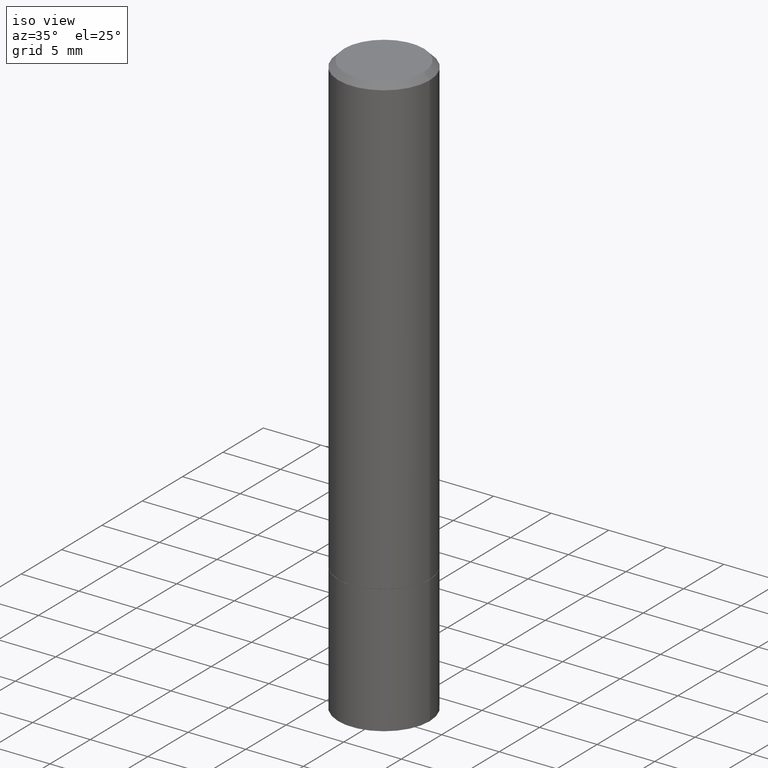
[diagram: clean part render]
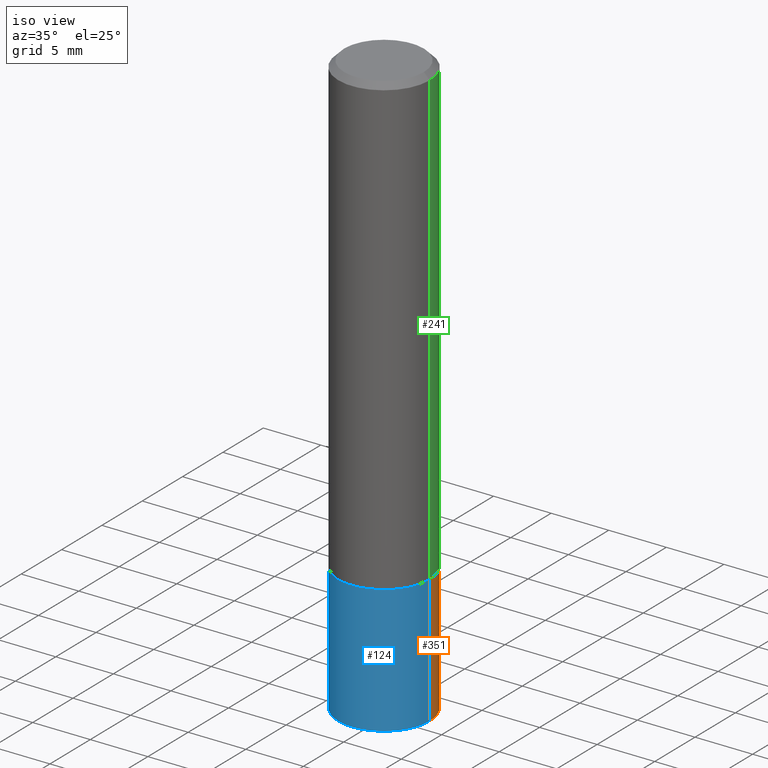
[diagram: same view with three faces highlighted in distinct colors, each labeled with its STEP entity id]
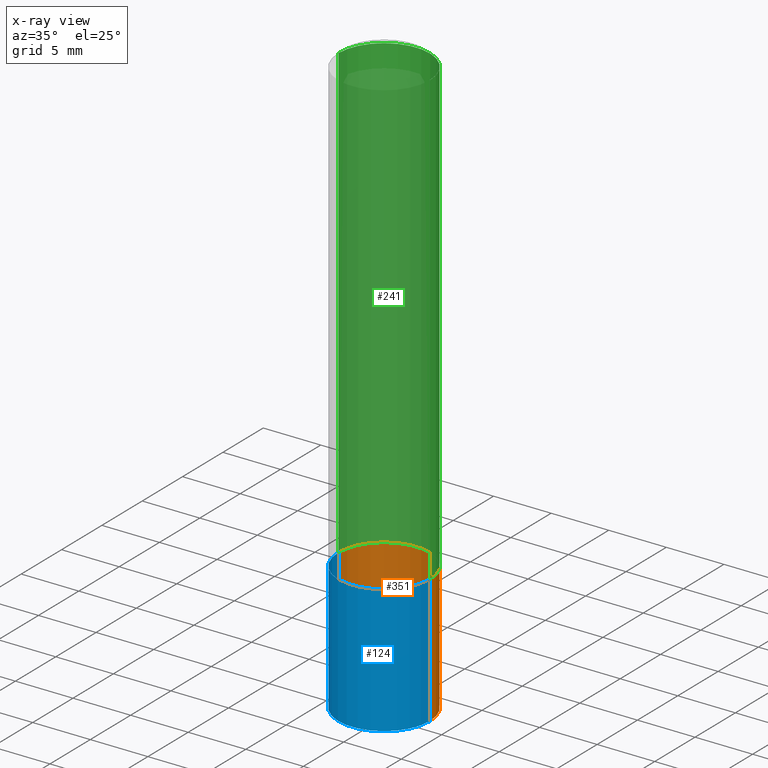
[diagram: x-ray of the same camera — body ghosted, the three highlighted faces saturated]
A machine part, iso view with three faces highlighted in distinct colors.
The next image is the same camera in x-ray (body ghosted, the three faces saturated) — at least one of them is partly hidden behind the body in this view.
Their STEP definitions:

[orange] entity #351 — the highlighted cylindrical surface (partial cylindrical patch) has radius 3.9688 mm, axis along (-0, 0, 1).
#11 = EDGE_CURVE ( 'NONE', #170, #69, #219, .T. ) ;
#18 = EDGE_LOOP ( 'NONE', ( #74, #274, #294, #36 ) ) ;
#19 = DIRECTION ( 'NONE',  ( -2.445468806185136597E-29, 3.491481338843145583E-15, 1.000000000000000000 ) ) ;
#34 = AXIS2_PLACEMENT_3D ( 'NONE', #218, #37, #248 ) ;
#35 = DIRECTION ( 'NONE',  ( -2.445468806185136877E-29, 3.491481338843145188E-15, 1.000000000000000000 ) ) ;
#36 = ORIENTED_EDGE ( 'NONE', *, *, #177, .F. ) ;
#37 = DIRECTION ( 'NONE',  ( -2.445468806185136597E-29, 3.491481338843145583E-15, 1.000000000000000000 ) ) ;
#48 = CARTESIAN_POINT ( 'NONE',  ( 3.821045009664275932E-29, -5.455439591942415589E-15, -1.562500000000000000 ) ) ;
#58 = CARTESIAN_POINT ( 'NONE',  ( 0.1562500000000000000, -1.091087918388479174E-15, 7.619026212181150377E-30 ) ) ;
#69 = VERTEX_POINT ( 'NONE', #172 ) ;
#74 = ORIENTED_EDGE ( 'NONE', *, *, #11, .T. ) ;
#82 = VECTOR ( 'NONE', #35, 39.37007874015748143 ) ;
#87 = AXIS2_PLACEMENT_3D ( 'NONE', #193, #199, #333 ) ;
#112 = EDGE_CURVE ( 'NONE', #320, #186, #356, .T. ) ;
#113 = LINE ( 'NONE', #58, #82 ) ;
#133 = DIRECTION ( 'NONE',  ( 1.000000000000000000, -6.982962677686269077E-15, 0.000000000000000000 ) ) ;
#148 = CARTESIAN_POINT ( 'NONE',  ( -0.1562500000000000000, -5.108978110189196442E-15, -1.562500000000000000 ) ) ;
#170 = VERTEX_POINT ( 'NONE', #264 ) ;
#172 = CARTESIAN_POINT ( 'NONE',  ( -0.1562500000000000000, -5.108978110189196442E-15, -2.000000000000000000 ) ) ;
#177 = EDGE_CURVE ( 'NONE', #170, #320, #113, .T. ) ;
#180 = CARTESIAN_POINT ( 'NONE',  ( -0.1562500000000000000, 1.110223024625156540E-15, -7.685836078523291160E-30 ) ) ;
#182 = LINE ( 'NONE', #180, #340 ) ;
#186 = VERTEX_POINT ( 'NONE', #148 ) ;
#193 = CARTESIAN_POINT ( 'NONE',  ( 4.890937612370273194E-29, -6.982962677686291165E-15, -2.000000000000000000 ) ) ;
#199 = DIRECTION ( 'NONE',  ( -2.445468806185136597E-29, 3.491481338843145583E-15, 1.000000000000000000 ) ) ;
#217 = FACE_OUTER_BOUND ( 'NONE', #18, .T. ) ;
#218 = CARTESIAN_POINT ( 'NONE',  ( 0.000000000000000000, 0.000000000000000000, 0.000000000000000000 ) ) ;
#219 = CIRCLE ( 'NONE', #87, 0.1562500000000000000 ) ;
#235 = AXIS2_PLACEMENT_3D ( 'NONE', #48, #19, #133 ) ;
#248 = DIRECTION ( 'NONE',  ( 1.000000000000000000, -6.982962677686266711E-15, 4.876176775795936353E-29 ) ) ;
#257 = EDGE_CURVE ( 'NONE', #69, #186, #182, .T. ) ;
#264 = CARTESIAN_POINT ( 'NONE',  ( 0.1562500000000000000, -8.074050596074770339E-15, -2.000000000000000000 ) ) ;
#271 = CYLINDRICAL_SURFACE ( 'NONE', #34, 0.1562500000000000000 ) ;
#274 = ORIENTED_EDGE ( 'NONE', *, *, #257, .T. ) ;
#294 = ORIENTED_EDGE ( 'NONE', *, *, #112, .F. ) ;
#320 = VERTEX_POINT ( 'NONE', #352 ) ;
#333 = DIRECTION ( 'NONE',  ( 1.000000000000000000, -6.982962677686269077E-15, 0.000000000000000000 ) ) ;
#340 = VECTOR ( 'NONE', #341, 39.37007874015748143 ) ;
#341 = DIRECTION ( 'NONE',  ( -2.445468806185136877E-29, 3.491481338843145188E-15, 1.000000000000000000 ) ) ;
#351 = ADVANCED_FACE ( 'NONE', ( #217 ), #271, .T. ) ;
#352 = CARTESIAN_POINT ( 'NONE',  ( 0.1562500000000000000, -6.546527510330894763E-15, -1.562500000000000000 ) ) ;
#356 = CIRCLE ( 'NONE', #235, 0.1562500000000000000 ) ;

[blue] entity #124 — the highlighted cylindrical surface (partial cylindrical patch) has radius 3.9688 mm, axis along (-0, 0, 1).
#17 = ORIENTED_EDGE ( 'NONE', *, *, #86, .F. ) ;
#21 = CYLINDRICAL_SURFACE ( 'NONE', #285, 0.1562500000000000000 ) ;
#22 = DIRECTION ( 'NONE',  ( 1.000000000000000000, -6.982962677686269077E-15, 0.000000000000000000 ) ) ;
#32 = AXIS2_PLACEMENT_3D ( 'NONE', #277, #225, #22 ) ;
#35 = DIRECTION ( 'NONE',  ( -2.445468806185136877E-29, 3.491481338843145188E-15, 1.000000000000000000 ) ) ;
#44 = EDGE_LOOP ( 'NONE', ( #111, #99, #308, #17 ) ) ;
#58 = CARTESIAN_POINT ( 'NONE',  ( 0.1562500000000000000, -1.091087918388479174E-15, 7.619026212181150377E-30 ) ) ;
#69 = VERTEX_POINT ( 'NONE', #172 ) ;
#77 = CARTESIAN_POINT ( 'NONE',  ( 3.821045009664275932E-29, -5.455439591942415589E-15, -1.562500000000000000 ) ) ;
#82 = VECTOR ( 'NONE', #35, 39.37007874015748143 ) ;
#86 = EDGE_CURVE ( 'NONE', #186, #320, #206, .T. ) ;
#98 = EDGE_CURVE ( 'NONE', #69, #170, #263, .T. ) ;
#99 = ORIENTED_EDGE ( 'NONE', *, *, #98, .T. ) ;
#103 = DIRECTION ( 'NONE',  ( 1.000000000000000000, -6.982962677686269077E-15, 0.000000000000000000 ) ) ;
#111 = ORIENTED_EDGE ( 'NONE', *, *, #257, .F. ) ;
#113 = LINE ( 'NONE', #58, #82 ) ;
#124 = ADVANCED_FACE ( 'NONE', ( #227 ), #21, .T. ) ;
#148 = CARTESIAN_POINT ( 'NONE',  ( -0.1562500000000000000, -5.108978110189196442E-15, -1.562500000000000000 ) ) ;
#170 = VERTEX_POINT ( 'NONE', #264 ) ;
#172 = CARTESIAN_POINT ( 'NONE',  ( -0.1562500000000000000, -5.108978110189196442E-15, -2.000000000000000000 ) ) ;
#175 = DIRECTION ( 'NONE',  ( 1.000000000000000000, -6.982962677686266711E-15, 4.876176775795936353E-29 ) ) ;
#177 = EDGE_CURVE ( 'NONE', #170, #320, #113, .T. ) ;
#180 = CARTESIAN_POINT ( 'NONE',  ( -0.1562500000000000000, 1.110223024625156540E-15, -7.685836078523291160E-30 ) ) ;
#182 = LINE ( 'NONE', #180, #340 ) ;
#186 = VERTEX_POINT ( 'NONE', #148 ) ;
#206 = CIRCLE ( 'NONE', #254, 0.1562500000000000000 ) ;
#225 = DIRECTION ( 'NONE',  ( -2.445468806185136597E-29, 3.491481338843145583E-15, 1.000000000000000000 ) ) ;
#227 = FACE_OUTER_BOUND ( 'NONE', #44, .T. ) ;
#254 = AXIS2_PLACEMENT_3D ( 'NONE', #77, #279, #103 ) ;
#257 = EDGE_CURVE ( 'NONE', #69, #186, #182, .T. ) ;
#263 = CIRCLE ( 'NONE', #32, 0.1562500000000000000 ) ;
#264 = CARTESIAN_POINT ( 'NONE',  ( 0.1562500000000000000, -8.074050596074770339E-15, -2.000000000000000000 ) ) ;
#277 = CARTESIAN_POINT ( 'NONE',  ( 4.890937612370273194E-29, -6.982962677686291165E-15, -2.000000000000000000 ) ) ;
#279 = DIRECTION ( 'NONE',  ( -2.445468806185136597E-29, 3.491481338843145583E-15, 1.000000000000000000 ) ) ;
#285 = AXIS2_PLACEMENT_3D ( 'NONE', #363, #312, #175 ) ;
#308 = ORIENTED_EDGE ( 'NONE', *, *, #177, .T. ) ;
#312 = DIRECTION ( 'NONE',  ( -2.445468806185136597E-29, 3.491481338843145583E-15, 1.000000000000000000 ) ) ;
#320 = VERTEX_POINT ( 'NONE', #352 ) ;
#340 = VECTOR ( 'NONE', #341, 39.37007874015748143 ) ;
#341 = DIRECTION ( 'NONE',  ( -2.445468806185136877E-29, 3.491481338843145188E-15, 1.000000000000000000 ) ) ;
#352 = CARTESIAN_POINT ( 'NONE',  ( 0.1562500000000000000, -6.546527510330894763E-15, -1.562500000000000000 ) ) ;
#363 = CARTESIAN_POINT ( 'NONE',  ( 0.000000000000000000, 0.000000000000000000, 0.000000000000000000 ) ) ;

[green] entity #241 — the highlighted cylindrical surface (partial cylindrical patch) has radius 3.9687 mm, axis along (-0, 0, 1).
#1 = CARTESIAN_POINT ( 'NONE',  ( 0.1562499999999999167, -1.091087918388478385E-15, 7.619026212181144772E-30 ) ) ;
#26 = LINE ( 'NONE', #1, #249 ) ;
#49 = DIRECTION ( 'NONE',  ( 1.000000000000000000, -6.982962677686266711E-15, 0.000000000000000000 ) ) ;
#53 = DIRECTION ( 'NONE',  ( -2.445468806185136597E-29, 3.491481338843145583E-15, 1.000000000000000000 ) ) ;
#61 = VERTEX_POINT ( 'NONE', #195 ) ;
#64 = CIRCLE ( 'NONE', #305, 0.1562500000000000000 ) ;
#70 = AXIS2_PLACEMENT_3D ( 'NONE', #229, #332, #49 ) ;
#75 = EDGE_CURVE ( 'NONE', #212, #61, #328, .T. ) ;
#79 = CARTESIAN_POINT ( 'NONE',  ( -0.1562499999999999167, 1.110223024625155949E-15, -7.685836078523285555E-30 ) ) ;
#94 = VECTOR ( 'NONE', #336, 39.37007874015748143 ) ;
#110 = DIRECTION ( 'NONE',  ( -2.445468806185136877E-29, 3.491481338843145188E-15, 1.000000000000000000 ) ) ;
#116 = DIRECTION ( 'NONE',  ( 1.000000000000000000, -6.982962677686265133E-15, 4.876176775795935232E-29 ) ) ;
#120 = FACE_OUTER_BOUND ( 'NONE', #194, .T. ) ;
#122 = ORIENTED_EDGE ( 'NONE', *, *, #314, .F. ) ;
#146 = ORIENTED_EDGE ( 'NONE', *, *, #75, .F. ) ;
#150 = DIRECTION ( 'NONE',  ( -2.445468806185136597E-29, 3.491481338843145583E-15, 1.000000000000000000 ) ) ;
#152 = DIRECTION ( 'NONE',  ( 1.000000000000000000, -6.982962677686269077E-15, 0.000000000000000000 ) ) ;
#154 = VERTEX_POINT ( 'NONE', #290 ) ;
#164 = EDGE_CURVE ( 'NONE', #154, #61, #286, .T. ) ;
#168 = EDGE_CURVE ( 'NONE', #240, #154, #64, .T. ) ;
#194 = EDGE_LOOP ( 'NONE', ( #358, #349, #146, #122 ) ) ;
#195 = CARTESIAN_POINT ( 'NONE',  ( -0.1562499999999998057, 1.021258291611614495E-15, -0.02000000000000008021 ) ) ;
#207 = CARTESIAN_POINT ( 'NONE',  ( 0.1562499999999998057, -1.141782438928663724E-15, -0.02000000000000008021 ) ) ;
#208 = CARTESIAN_POINT ( 'NONE',  ( 0.1562500000000000000, -6.543036028992050967E-15, -1.561499999999999888 ) ) ;
#212 = VERTEX_POINT ( 'NONE', #207 ) ;
#229 = CARTESIAN_POINT ( 'NONE',  ( 4.890937612370293302E-31, -6.982962677686318726E-17, -0.02000000000000008021 ) ) ;
#232 = CYLINDRICAL_SURFACE ( 'NONE', #299, 0.1562499999999999167 ) ;
#240 = VERTEX_POINT ( 'NONE', #208 ) ;
#241 = ADVANCED_FACE ( 'NONE', ( #120 ), #232, .T. ) ;
#249 = VECTOR ( 'NONE', #110, 39.37007874015748143 ) ;
#286 = LINE ( 'NONE', #79, #94 ) ;
#288 = CARTESIAN_POINT ( 'NONE',  ( 0.000000000000000000, 0.000000000000000000, 0.000000000000000000 ) ) ;
#290 = CARTESIAN_POINT ( 'NONE',  ( -0.1562500000000000000, -1.650665844065059428E-15, -1.561499999999999888 ) ) ;
#293 = CARTESIAN_POINT ( 'NONE',  ( 3.818599540858090890E-29, -5.451948110603571793E-15, -1.561499999999999888 ) ) ;
#299 = AXIS2_PLACEMENT_3D ( 'NONE', #288, #53, #116 ) ;
#305 = AXIS2_PLACEMENT_3D ( 'NONE', #293, #150, #152 ) ;
#314 = EDGE_CURVE ( 'NONE', #240, #212, #26, .T. ) ;
#328 = CIRCLE ( 'NONE', #70, 0.1562499999999998057 ) ;
#332 = DIRECTION ( 'NONE',  ( -2.445468806185136597E-29, 3.491481338843145583E-15, 1.000000000000000000 ) ) ;
#336 = DIRECTION ( 'NONE',  ( -2.445468806185136877E-29, 3.491481338843145188E-15, 1.000000000000000000 ) ) ;
#349 = ORIENTED_EDGE ( 'NONE', *, *, #164, .T. ) ;
#358 = ORIENTED_EDGE ( 'NONE', *, *, #168, .T. ) ;